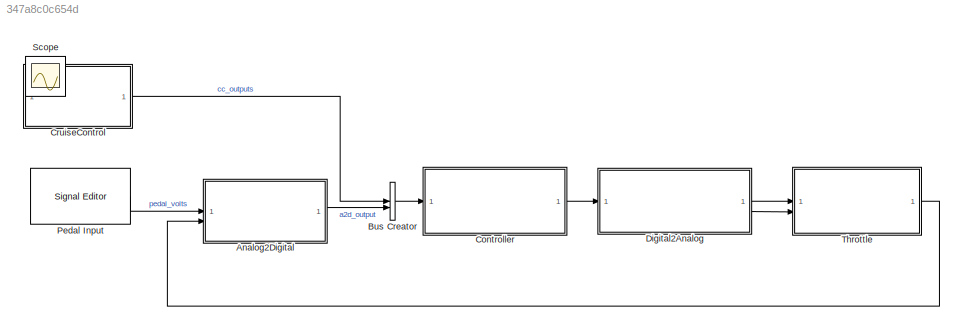
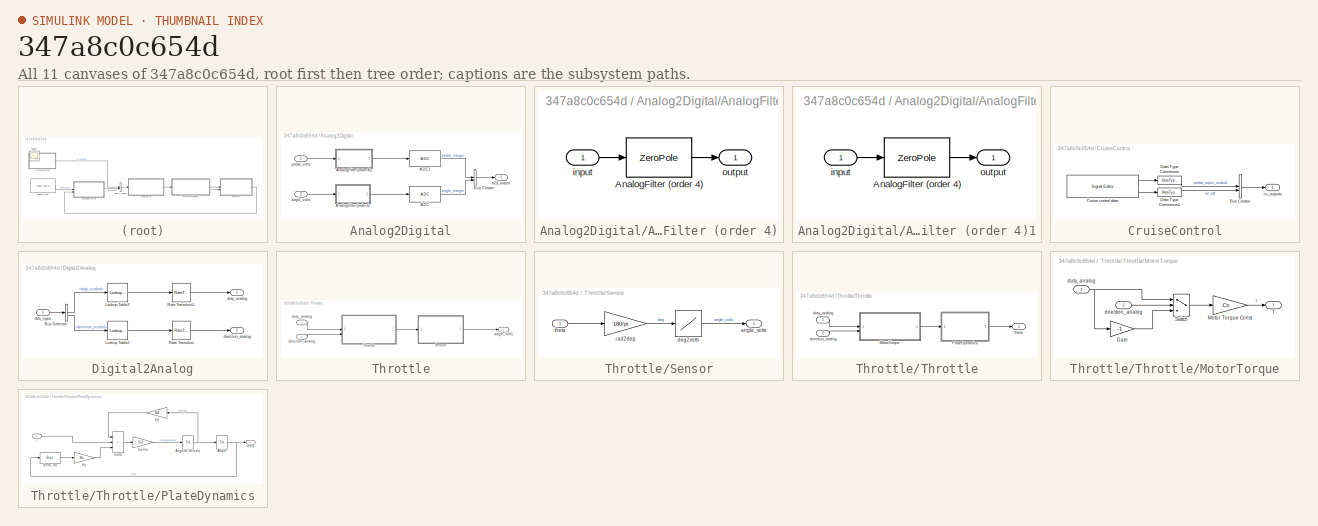
[diagram: thumbnail index - all 11 canvases of the model, root first then tree order]
MODEL slx_347a8c0c654d
KIND model
CONFIG AbsTol = auto
CONFIG EnableMultiTasking = on
CONFIG FixedStep = auto
CONFIG MaxStep = auto
CONFIG MinStep = auto
CONFIG RelTol = 1e-3
CONFIG SampleTimeConstraint = Unconstrained
CONFIG SolverName = ode45
CONFIG StartTime = 0.0
CONFIG StopTime = 10.0
WORKSPACE source: external: MAT-File  (data not in archive)
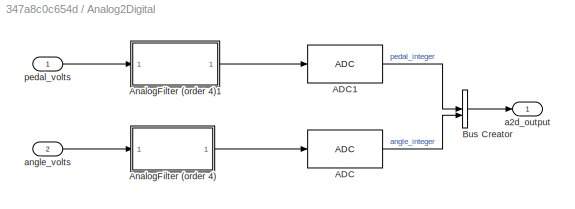
BLOCK [SubSystem] Analog2Digital
  AttributesFormatString = (Hardware / software interface)
  MinAlgLoopOccurrences = on
BLOCK [Reference] Analog2Digital/ADC  REF=adcUtils/ADC
  SourceBlock = adcUtils/ADC
BLOCK [Reference] Analog2Digital/ADC1  REF=adcUtils/ADC
  SourceBlock = adcUtils/ADC
BLOCK [SubSystem] Analog2Digital/AnalogFilter (order 4)
  VariantControl = lowOrderFilter
BLOCK [ZeroPole] Analog2Digital/AnalogFilter (order 4)/AnalogFilter (order 4)
  Gain = 3.9899e9
  Poles = 1.0e2*[-2.2739+0.6809i,-2.2739-0.6809i,-1.6518+2.0864i,-1.6518-2.0864i]
  Zeros = []
BLOCK [Inport] Analog2Digital/AnalogFilter (order 4)/input
BLOCK [Outport] Analog2Digital/AnalogFilter (order 4)/output
  VectorParamsAs1DForOutWhenUnconnected = off
BLOCK [SubSystem] Analog2Digital/AnalogFilter (order 4)1
  VariantControl = lowOrderFilter
BLOCK [ZeroPole] Analog2Digital/AnalogFilter (order 4)1/AnalogFilter (order 4)
  Gain = 3.9899e9
  Poles = 1.0e2*[-2.2739+0.6809i,-2.2739-0.6809i,-1.6518+2.0864i,-1.6518-2.0864i]
  Zeros = []
BLOCK [Inport] Analog2Digital/AnalogFilter (order 4)1/input
BLOCK [Outport] Analog2Digital/AnalogFilter (order 4)1/output
  VectorParamsAs1DForOutWhenUnconnected = off
BLOCK [BusCreator] Analog2Digital/Bus Creator
  DisplayOption = bar
  InheritFromInputs = on
  Inputs = 2
  OutDataTypeStr = Bus: a2d_output_bus
BLOCK [Outport] Analog2Digital/a2d_output
  OutDataTypeStr = Bus: a2d_output_bus
  SampleTime = Ts
  VectorParamsAs1DForOutWhenUnconnected = off
BLOCK [Inport] Analog2Digital/angle_volts
  OutDataTypeStr = double
  Port = 2
  PortDimensions = 1
  SampleTime = 0
BLOCK [Inport] Analog2Digital/pedal_volts
  OutDataTypeStr = double
  PortDimensions = 1
  SampleTime = 0
BLOCK [BusCreator] Bus Creator
  DisplayOption = bar
  InheritFromInputs = on
  Inputs = 2
  OutDataTypeStr = Bus: ctrl_input_bus
BLOCK [ModelReference] Controller
  AttributesFormatString = (Software)
  ModelNameDialog = controller
  ModelReferenceVersion = 9.0
BLOCK [SubSystem] CruiseControl
  MinAlgLoopOccurrences = on
BLOCK [BusCreator] CruiseControl/Bus Creator
  DisplayOption = bar
  InheritFromInputs = on
  Inputs = 2
  OutDataTypeStr = Bus: cc_outputs_bus
BLOCK [Reference] CruiseControl/Cruise control data  REF=SignalEditorBlockLib/Signal Editor
  SourceBlock = SignalEditorBlockLib/Signal Editor
  SourceType = SignalEditor
  UserDataPersistent = on
BLOCK [DataTypeConversion] CruiseControl/Data Type Conversion
  OutDataTypeStr = double
  RndMeth = Floor
  SampleTime = Ts
  SaturateOnIntegerOverflow = off
BLOCK [DataTypeConversion] CruiseControl/Data Type Conversion1
  OutDataTypeStr = boolean
  RndMeth = Floor
  SampleTime = Ts
  SaturateOnIntegerOverflow = off
BLOCK [Outport] CruiseControl/cc_outputs
  OutDataTypeStr = Bus: cc_outputs_bus
  SampleTime = Ts
  VectorParamsAs1DForOutWhenUnconnected = off
BLOCK [SubSystem] Digital2Analog
  AttributesFormatString = (Software / hardware interface)
  MinAlgLoopOccurrences = on
BLOCK [BusSelector] Digital2Analog/Bus Selector
  OutputSignals = duty_scaled,direction_scaled
BLOCK [Lookup_n-D] Digital2Analog/Lookup Table2
  AttributesFormatString = Output data type: %<OutDataTypeStr>
  BreakpointsForDimension1 = digital_range
  ExtrapMethod = Clip
  InputPortMap = u0
  NumberOfTableDimensions = 1
  OutDataTypeStr = double
  Table = direction_range_analog
BLOCK [Lookup_n-D] Digital2Analog/Lookup Table3
  AttributesFormatString = Output data type: %<OutDataTypeStr>
  BreakpointsForDimension1 = uint_range_10bit
  ExtrapMethod = Clip
  InputPortMap = u0
  NumberOfTableDimensions = 1
  OutDataTypeStr = double
  Table = duty_range_analog
BLOCK [RateTransition] Digital2Analog/Rate Transition
  Integrity = off
  OutPortSampleTime = 0
BLOCK [RateTransition] Digital2Analog/Rate Transition1
  Integrity = off
  OutPortSampleTime = 0
BLOCK [Inport] Digital2Analog/d2a_input
  OutDataTypeStr = Bus: d2a_input_bus
  PortDimensions = 1
  SampleTime = Ts
BLOCK [Outport] Digital2Analog/direction_analog
  OutDataTypeStr = double
  Port = 2
  PortDimensions = 1
  SampleTime = 0
  VectorParamsAs1DForOutWhenUnconnected = off
BLOCK [Outport] Digital2Analog/duty_analog
  OutDataTypeStr = double
  PortDimensions = 1
  SampleTime = 0
  VectorParamsAs1DForOutWhenUnconnected = off
BLOCK [Reference] Pedal Input  REF=SignalEditorBlockLib/Signal Editor
  SourceBlock = SignalEditorBlockLib/Signal Editor
  SourceType = SignalEditor
  UserDataPersistent = on
BLOCK [Scope] Scope
  Floating = off
  IOType = viewer
  NumInputPorts = 1
  ScopeSpecificationString = Simulink.scopes.TimeScopeBlockCfg('CurrentConfiguration', extmgr.ConfigurationSet(extmgr.Configuration('Core','General UI',true),extmgr.Configuration('Core','Source UI',true),extmgr.Configuration('Sources','WiredSimulink',true,'DataLoggingMaxPoints','7500','DataLoggingLimitDataPoints',true,'DataLoggingSaveFormat','Array','DataLoggingDecimation','1','DataLoggingDecimateData',true),extmgr.Configurat...<+2064ch>
BLOCK [SubSystem] Throttle
  AttributesFormatString = (Hardware - physical system)
BLOCK [SubSystem] Throttle/Sensor
BLOCK [Outport] Throttle/Sensor/angle_volts
  VectorParamsAs1DForOutWhenUnconnected = off
BLOCK [Lookup] Throttle/Sensor/deg2volts
  InputValues = [0 90]
  LookUpMeth = Interpolation-Use End Values
  SaturateOnIntegerOverflow = off
  Table = [0.5 4.5]
BLOCK [Gain] Throttle/Sensor/rad2deg
  Gain = 180/pi
  OutDataTypeStr = Inherit: Same as input
  ParamDataTypeStr = Inherit: Same as input
  SaturateOnIntegerOverflow = on
BLOCK [Inport] Throttle/Sensor/theta
BLOCK [SubSystem] Throttle/Throttle
BLOCK [SubSystem] Throttle/Throttle/MotorTorque
BLOCK [Gain] Throttle/Throttle/MotorTorque/Gain
  Gain = -1
  OutDataTypeStr = Inherit: Same as input
  ParamDataTypeStr = Inherit: Same as input
  SaturateOnIntegerOverflow = on
BLOCK [Gain] Throttle/Throttle/MotorTorque/Motor Torque Const
  Gain = Cs
  OutDataTypeStr = Inherit: Same as input
  ParamDataTypeStr = Inherit: Same as input
  SaturateOnIntegerOverflow = on
BLOCK [Switch] Throttle/Throttle/MotorTorque/Switch
  Criteria = u2 > Threshold
  InputSameDT = off
  SaturateOnIntegerOverflow = off
  Threshold = 3.0
BLOCK [Outport] Throttle/Throttle/MotorTorque/T
  VectorParamsAs1DForOutWhenUnconnected = off
BLOCK [Inport] Throttle/Throttle/MotorTorque/direction_analog
  Port = 2
BLOCK [Inport] Throttle/Throttle/MotorTorque/duty_analog
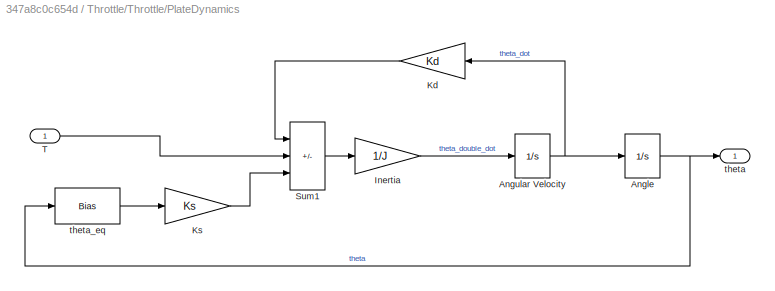
BLOCK [SubSystem] Throttle/Throttle/PlateDynamics
BLOCK [Integrator] Throttle/Throttle/PlateDynamics/Angle
  AttributesFormatString = Initial condition: %<InitialCondition>\n%<LowerSaturationLimit> <= theta <= %<UpperSaturationLimit>
  InitialCondition = theta_eq
  LimitOutput = on
  LowerSaturationLimit = 0
  UpperSaturationLimit = pi/2
BLOCK [Integrator] Throttle/Throttle/PlateDynamics/Angular Velocity
  AttributesFormatString = Initial condition: %<InitialCondition>
BLOCK [Gain] Throttle/Throttle/PlateDynamics/Inertia
  Gain = 1/J
  OutDataTypeStr = Inherit: Same as input
  ParamDataTypeStr = Inherit: Same as input
  SaturateOnIntegerOverflow = on
BLOCK [Gain] Throttle/Throttle/PlateDynamics/Kd
  Gain = Kd
  OutDataTypeStr = Inherit: Same as input
  ParamDataTypeStr = Inherit: Same as input
  SaturateOnIntegerOverflow = on
BLOCK [Gain] Throttle/Throttle/PlateDynamics/Ks
  Gain = Ks
  OutDataTypeStr = Inherit: Same as input
  ParamDataTypeStr = Inherit: Same as input
  SaturateOnIntegerOverflow = on
BLOCK [Sum] Throttle/Throttle/PlateDynamics/Sum1
  IconShape = rectangular
  Inputs = -+-
  SaturateOnIntegerOverflow = on
BLOCK [Inport] Throttle/Throttle/PlateDynamics/T
BLOCK [Outport] Throttle/Throttle/PlateDynamics/theta
  VectorParamsAs1DForOutWhenUnconnected = off
BLOCK [Bias] Throttle/Throttle/PlateDynamics/theta_eq
  Bias = -theta_eq
  SaturateOnIntegerOverflow = off
BLOCK [Inport] Throttle/Throttle/direction_analog
  Port = 2
BLOCK [Inport] Throttle/Throttle/duty_analog
BLOCK [Outport] Throttle/Throttle/theta
  VectorParamsAs1DForOutWhenUnconnected = off
BLOCK [Outport] Throttle/angle_volts
  OutDataTypeStr = double
  PortDimensions = 1
  SampleTime = 0
  VectorParamsAs1DForOutWhenUnconnected = off
BLOCK [Inport] Throttle/direction_analog
  OutDataTypeStr = double
  Port = 2
  PortDimensions = 1
  SampleTime = 0
BLOCK [Inport] Throttle/duty_analog
  OutDataTypeStr = double
  PortDimensions = 1
  SampleTime = 0
LINE Analog2Digital/ADC1:1 -> Analog2Digital/Bus Creator:1
LINE Analog2Digital/ADC:1 -> Analog2Digital/Bus Creator:2
LINE Analog2Digital/AnalogFilter (order 4)/AnalogFilter (order 4):1 -> Analog2Digital/AnalogFilter (order 4)/output:1
LINE Analog2Digital/AnalogFilter (order 4)/input:1 -> Analog2Digital/AnalogFilter (order 4)/AnalogFilter (order 4):1
LINE Analog2Digital/AnalogFilter (order 4)1/AnalogFilter (order 4):1 -> Analog2Digital/AnalogFilter (order 4)1/output:1
LINE Analog2Digital/AnalogFilter (order 4)1/input:1 -> Analog2Digital/AnalogFilter (order 4)1/AnalogFilter (order 4):1
LINE Analog2Digital/AnalogFilter (order 4)1:1 -> Analog2Digital/ADC1:1
LINE Analog2Digital/AnalogFilter (order 4):1 -> Analog2Digital/ADC:1
LINE Analog2Digital/Bus Creator:1 -> Analog2Digital/a2d_output:1
LINE Analog2Digital/angle_volts:1 -> Analog2Digital/AnalogFilter (order 4):1
LINE Analog2Digital/pedal_volts:1 -> Analog2Digital/AnalogFilter (order 4)1:1
LINE Analog2Digital:1 -> Bus Creator:2
LINE Bus Creator:1 -> Controller:1
LINE Controller:1 -> Digital2Analog:1
LINE CruiseControl/Bus Creator:1 -> CruiseControl/cc_outputs:1
LINE CruiseControl/Cruise control data:1 -> CruiseControl/Data Type Conversion:1
LINE CruiseControl/Cruise control data:2 -> CruiseControl/Data Type Conversion1:1
LINE CruiseControl/Data Type Conversion1:1 -> CruiseControl/Bus Creator:2
LINE CruiseControl/Data Type Conversion:1 -> CruiseControl/Bus Creator:1
LINE CruiseControl:1 -> Bus Creator:1
LINE Digital2Analog/Bus Selector:1 -> Digital2Analog/Lookup Table3:1
LINE Digital2Analog/Bus Selector:2 -> Digital2Analog/Lookup Table2:1
LINE Digital2Analog/Lookup Table2:1 -> Digital2Analog/Rate Transition:1
LINE Digital2Analog/Lookup Table3:1 -> Digital2Analog/Rate Transition1:1
LINE Digital2Analog/Rate Transition1:1 -> Digital2Analog/duty_analog:1
LINE Digital2Analog/Rate Transition:1 -> Digital2Analog/direction_analog:1
LINE Digital2Analog/d2a_input:1 -> Digital2Analog/Bus Selector:1
LINE Digital2Analog:1 -> Throttle:1
LINE Digital2Analog:2 -> Throttle:2
LINE Pedal Input:1 -> Analog2Digital:1
LINE Throttle/Sensor/deg2volts:1 -> Throttle/Sensor/angle_volts:1
LINE Throttle/Sensor/rad2deg:1 -> Throttle/Sensor/deg2volts:1
LINE Throttle/Sensor/theta:1 -> Throttle/Sensor/rad2deg:1
LINE Throttle/Sensor:1 -> Throttle/angle_volts:1
LINE Throttle/Throttle/MotorTorque/Gain:1 -> Throttle/Throttle/MotorTorque/Switch:3
LINE Throttle/Throttle/MotorTorque/Motor Torque Const:1 -> Throttle/Throttle/MotorTorque/T:1
LINE Throttle/Throttle/MotorTorque/Switch:1 -> Throttle/Throttle/MotorTorque/Motor Torque Const:1
LINE Throttle/Throttle/MotorTorque/direction_analog:1 -> Throttle/Throttle/MotorTorque/Switch:2
NET Throttle/Throttle/MotorTorque/duty_analog:1 -> Throttle/Throttle/MotorTorque/Gain:1, Throttle/Throttle/MotorTorque/Switch:1
LINE Throttle/Throttle/MotorTorque:1 -> Throttle/Throttle/PlateDynamics:1
NET Throttle/Throttle/PlateDynamics/Angle:1 -> Throttle/Throttle/PlateDynamics/theta:1, Throttle/Throttle/PlateDynamics/theta_eq:1
NET Throttle/Throttle/PlateDynamics/Angular Velocity:1 -> Throttle/Throttle/PlateDynamics/Angle:1, Throttle/Throttle/PlateDynamics/Kd:1
LINE Throttle/Throttle/PlateDynamics/Inertia:1 -> Throttle/Throttle/PlateDynamics/Angular Velocity:1
LINE Throttle/Throttle/PlateDynamics/Kd:1 -> Throttle/Throttle/PlateDynamics/Sum1:1
LINE Throttle/Throttle/PlateDynamics/Ks:1 -> Throttle/Throttle/PlateDynamics/Sum1:3
LINE Throttle/Throttle/PlateDynamics/Sum1:1 -> Throttle/Throttle/PlateDynamics/Inertia:1
LINE Throttle/Throttle/PlateDynamics/T:1 -> Throttle/Throttle/PlateDynamics/Sum1:2
LINE Throttle/Throttle/PlateDynamics/theta_eq:1 -> Throttle/Throttle/PlateDynamics/Ks:1
LINE Throttle/Throttle/PlateDynamics:1 -> Throttle/Throttle/theta:1
LINE Throttle/Throttle/direction_analog:1 -> Throttle/Throttle/MotorTorque:2
LINE Throttle/Throttle/duty_analog:1 -> Throttle/Throttle/MotorTorque:1
LINE Throttle/Throttle:1 -> Throttle/Sensor:1
LINE Throttle/direction_analog:1 -> Throttle/Throttle:2
LINE Throttle/duty_analog:1 -> Throttle/Throttle:1
LINE Throttle:1 -> Analog2Digital:2
note: NET lines group one-source signal fan-out (src -> all destinations, sorted); 1:1 wires keep LINE
